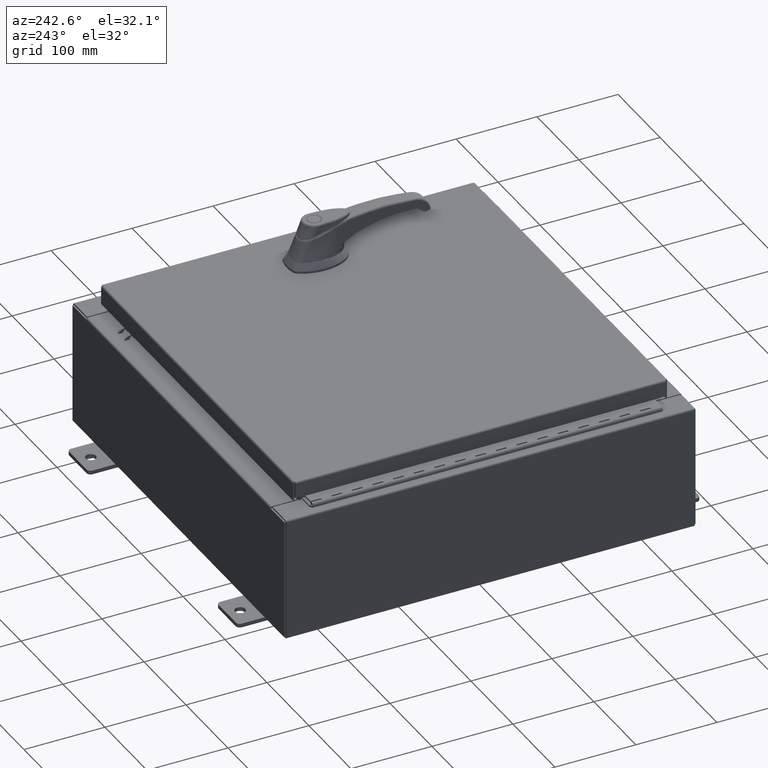
[diagram: clean part render]
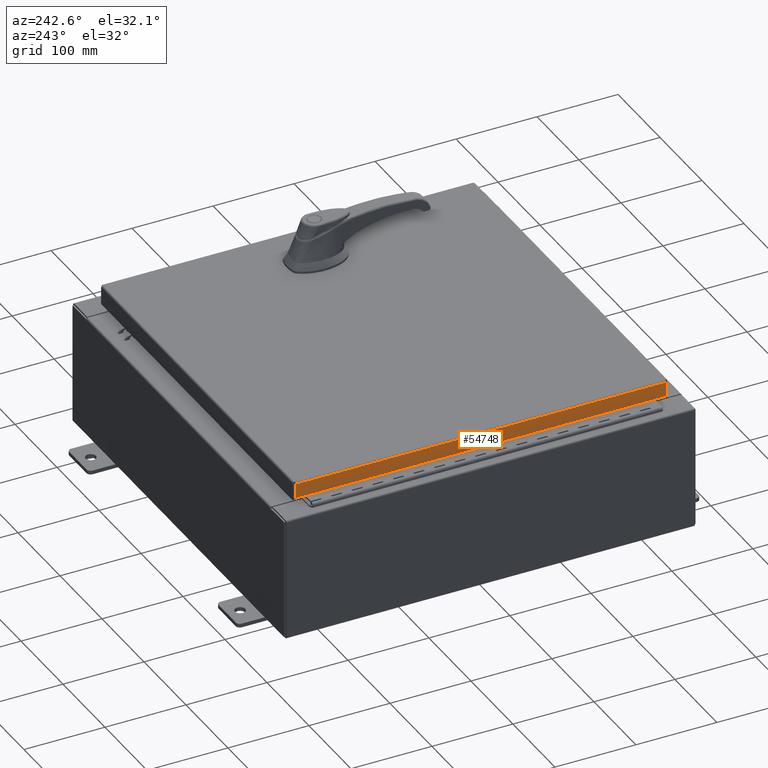
[diagram: same view with one face highlighted and labeled with its STEP entity id]
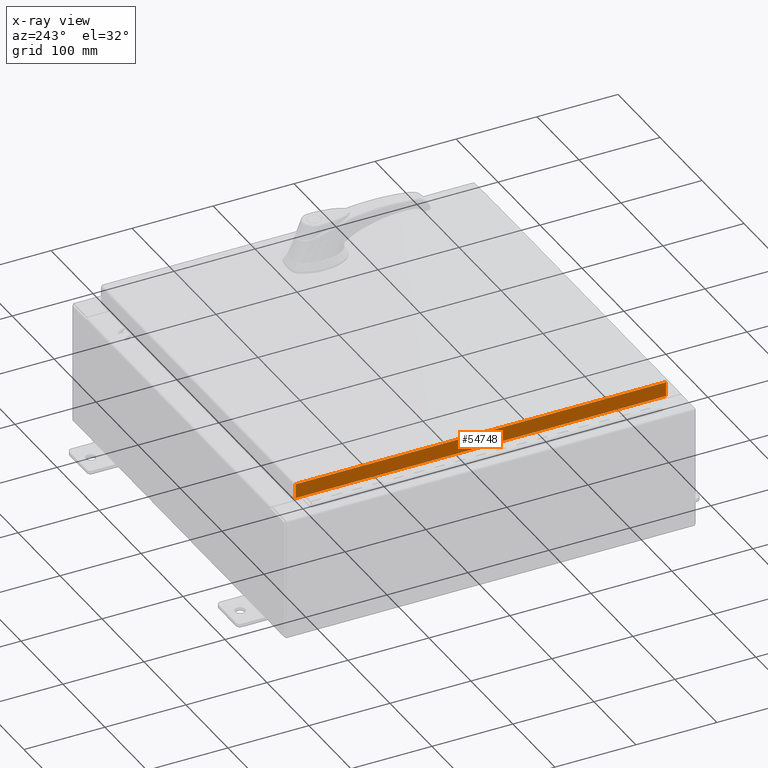
[diagram: x-ray of the same camera — body ghosted, the highlighted face saturated]
A machine part, auxiliary view. The second image highlights one B-rep face of the part: STEP entity #54748.
The next image is the same camera in x-ray: the body ghosted, the highlighted face saturated — about 0% of this face is hidden behind the body in this view.
In plain terms, the highlighted planar face has unit normal (1, 0, -0).
Its self-contained STEP definition (entity closure, byte-faithful):
#2232 = ORIENTED_EDGE ( 'NONE', *, *, #97724, .T. ) ;
#5740 = CARTESIAN_POINT ( 'NONE',  ( -9.077999999999999400, -9.005157864376268900, -0.08770000000000007000 ) ) ;
#18861 = DIRECTION ( 'NONE',  ( -3.034122441942816500E-015, 0.0000000000000000000, -1.000000000000000000 ) ) ;
#20931 = VERTEX_POINT ( 'NONE', #28380 ) ;
#25840 = AXIS2_PLACEMENT_3D ( 'NONE', #94435, #69353, #18861 ) ;
#28380 = CARTESIAN_POINT ( 'NONE',  ( -9.077999999999999400, 9.005157864376270600, -0.08770000000000004200 ) ) ;
#34562 = CARTESIAN_POINT ( 'NONE',  ( -9.077999999999999400, 9.005157864376268900, 9.068725845758093100E-014 ) ) ;
#35039 = VECTOR ( 'NONE', #72962, 39.37007874015748100 ) ;
#35391 = CARTESIAN_POINT ( 'NONE',  ( -9.078000000000001200, 9.005157864376274200, -0.7949999999999974900 ) ) ;
#36183 = EDGE_CURVE ( 'NONE', #20931, #50933, #79951, .T. ) ;
#41167 = ORIENTED_EDGE ( 'NONE', *, *, #36183, .F. ) ;
#41307 = ORIENTED_EDGE ( 'NONE', *, *, #87565, .F. ) ;
#43159 = CARTESIAN_POINT ( 'NONE',  ( -9.078000000000001200, -9.093999999999999400, -0.7949999999999997100 ) ) ;
#47005 = FACE_OUTER_BOUND ( 'NONE', #62310, .T. ) ;
#47338 = ORIENTED_EDGE ( 'NONE', *, *, #50179, .F. ) ;
#50179 = EDGE_CURVE ( 'NONE', #99592, #81514, #101616, .T. ) ;
#50933 = VERTEX_POINT ( 'NONE', #5740 ) ;
#51254 = DIRECTION ( 'NONE',  ( 4.379057701015054300E-047, 1.000000000000000000, 1.201604571657912400E-016 ) ) ;
#51531 = DIRECTION ( 'NONE',  ( -3.034122441942816500E-015, 6.982962677686267500E-015, -1.000000000000000000 ) ) ;
#54748 = ADVANCED_FACE ( 'NONE', ( #47005 ), #102915, .F. ) ;
#56720 = VECTOR ( 'NONE', #51254, 39.37007874015748100 ) ;
#62310 = EDGE_LOOP ( 'NONE', ( #41167, #2232, #47338, #41307 ) ) ;
#67800 = CARTESIAN_POINT ( 'NONE',  ( -9.077999999999999400, -9.005157864376267100, -0.07469999999999976700 ) ) ;
#69353 = DIRECTION ( 'NONE',  ( 1.000000000000000000, 3.645815397208356400E-031, -3.034122441942816500E-015 ) ) ;
#72962 = DIRECTION ( 'NONE',  ( 3.645815397208356400E-031, -1.000000000000000000, -1.074717912135910100E-045 ) ) ;
#79951 = LINE ( 'NONE', #98051, #35039 ) ;
#81208 = VECTOR ( 'NONE', #101363, 39.37007874015748100 ) ;
#81514 = VERTEX_POINT ( 'NONE', #35391 ) ;
#83849 = LINE ( 'NONE', #67800, #81208 ) ;
#85136 = LINE ( 'NONE', #34562, #87807 ) ;
#87565 = EDGE_CURVE ( 'NONE', #50933, #99592, #83849, .T. ) ;
#87807 = VECTOR ( 'NONE', #51531, 39.37007874015748100 ) ;
#94435 = CARTESIAN_POINT ( 'NONE',  ( -9.077999999999999400, -3.309671217585745400E-030, 2.780457718396846700E-014 ) ) ;
#97724 = EDGE_CURVE ( 'NONE', #20931, #81514, #85136, .T. ) ;
#98051 = CARTESIAN_POINT ( 'NONE',  ( -9.077999999999999400, -9.093999999999999400, -0.08770000000000004200 ) ) ;
#99592 = VERTEX_POINT ( 'NONE', #105575 ) ;
#101363 = DIRECTION ( 'NONE',  ( -3.034122441942816500E-015, 6.982962677686267500E-015, -1.000000000000000000 ) ) ;
#101616 = LINE ( 'NONE', #43159, #56720 ) ;
#102915 = PLANE ( 'NONE',  #25840 ) ;
#105575 = CARTESIAN_POINT ( 'NONE',  ( -9.078000000000001200, -9.005157864376261800, -0.7949999999999996000 ) ) ;